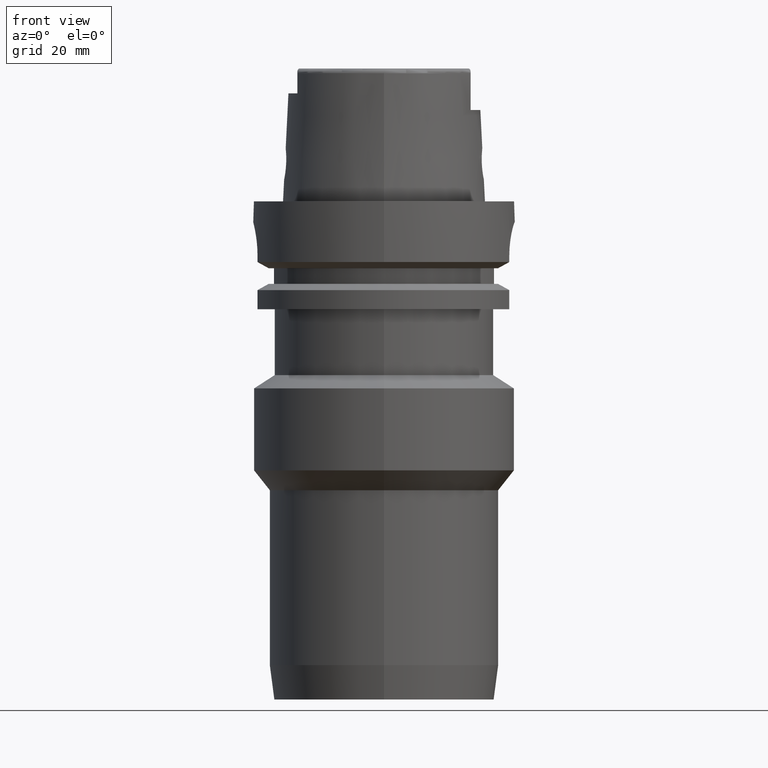
[diagram: clean part render]
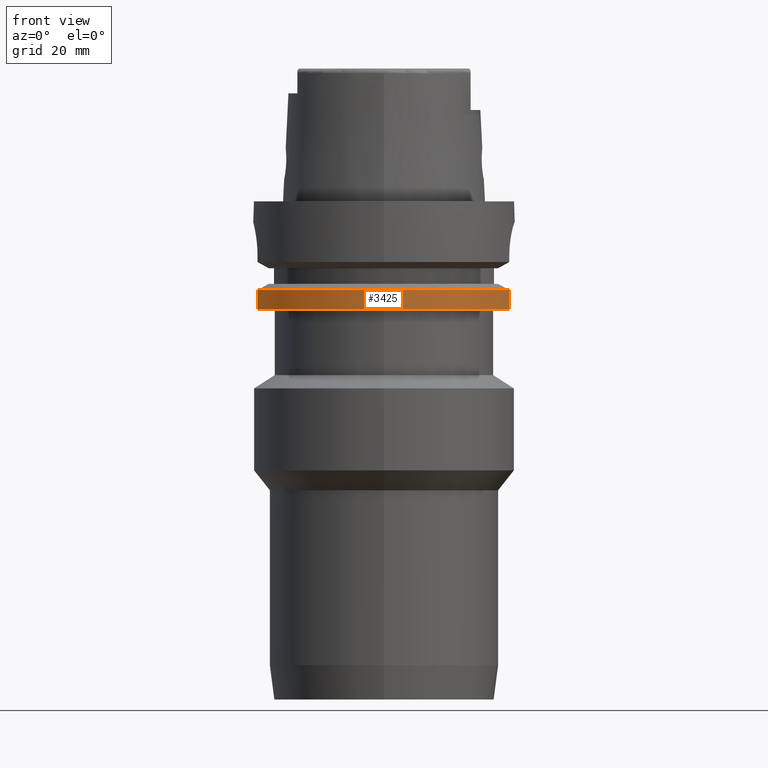
[diagram: same view with one face highlighted and labeled with its STEP entity id]
A machine part, front view. The second image highlights one B-rep face of the part: STEP entity #3425.
In plain terms, the highlighted cylindrical surface (partial cylindrical patch) has radius 31.5 mm, axis along (0, 0, -1).
Its self-contained STEP definition (entity closure, byte-faithful):
#1007=CARTESIAN_POINT('',(0.E0,1.709606931610E-14,-2.6E1));
#1008=DIRECTION('',(0.E0,0.E0,1.E0));
#1009=DIRECTION('',(-9.672125547036E-1,-2.539682539683E-1,0.E0));
#1010=AXIS2_PLACEMENT_3D('',#1007,#1008,#1009);
#1015=CARTESIAN_POINT('',(0.E0,1.709606931610E-14,-2.6E1));
#1016=DIRECTION('',(0.E0,0.E0,1.E0));
#1017=DIRECTION('',(0.E0,-1.E0,0.E0));
#1018=AXIS2_PLACEMENT_3D('',#1015,#1016,#1017);
#1179=DIRECTION('',(-5.649184503021E-9,2.151403712988E-8,1.E0));
#1180=VECTOR('',#1179,4.622501828018E0);
#1181=CARTESIAN_POINT('',(-3.046719547316E1,-8.E0,-2.6E1));
#1182=LINE('',#1181,#1180);
#1186=DIRECTION('',(4.466645379138E-8,1.498161051164E-7,-1.E0));
#1187=VECTOR('',#1186,4.622495339783E0);
#1188=CARTESIAN_POINT('',(3.018691748978E1,-9.000000692524E0,
-2.137750466022E1));
#1189=LINE('',#1188,#1187);
#1287=CARTESIAN_POINT('',(0.E0,0.E0,-2.137749907476E1));
#1288=DIRECTION('',(0.E0,0.E0,-1.E0));
#1289=DIRECTION('',(9.583148474999E-1,-2.857142857143E-1,0.E0));
#1290=AXIS2_PLACEMENT_3D('',#1287,#1288,#1289);
#1295=CARTESIAN_POINT('',(0.E0,0.E0,-2.137749907476E1));
#1296=DIRECTION('',(0.E0,0.E0,-1.E0));
#1297=DIRECTION('',(0.E0,-1.E0,0.E0));
#1298=AXIS2_PLACEMENT_3D('',#1295,#1296,#1297);
#2465=CARTESIAN_POINT('',(-3.046719547316E1,-8.E0,-2.6E1));
#2466=VERTEX_POINT('',#2465);
#2467=CARTESIAN_POINT('',(-1.425430758458E-14,-3.15E1,-2.6E1));
#2468=CARTESIAN_POINT('',(3.018691769625E1,-9.E0,-2.6E1));
#2469=VERTEX_POINT('',#2467);
#2470=VERTEX_POINT('',#2468);
#2622=CARTESIAN_POINT('',(-3.046719549928E1,-7.999999900552E0,
-2.137749817198E1));
#2623=VERTEX_POINT('',#2622);
#2624=CARTESIAN_POINT('',(3.018691769625E1,-9.E0,-2.137749907476E1));
#2625=CARTESIAN_POINT('',(0.E0,-3.15E1,-2.137749907476E1));
#2626=VERTEX_POINT('',#2624);
#2627=VERTEX_POINT('',#2625);
#3409=CARTESIAN_POINT('',(0.E0,1.709606931610E-14,3.96E1));
#3410=DIRECTION('',(0.E0,0.E0,-1.E0));
#3411=DIRECTION('',(0.E0,-1.E0,0.E0));
#3412=AXIS2_PLACEMENT_3D('',#3409,#3410,#3411);
#3413=CYLINDRICAL_SURFACE('',#3412,3.15E1);
#3415=ORIENTED_EDGE('',*,*,#3414,.T.);
#3417=ORIENTED_EDGE('',*,*,#3416,.F.);
#3419=ORIENTED_EDGE('',*,*,#3418,.F.);
#3420=ORIENTED_EDGE('',*,*,#3399,.T.);
#3421=ORIENTED_EDGE('',*,*,#3290,.F.);
#3422=ORIENTED_EDGE('',*,*,#3288,.F.);
#3423=EDGE_LOOP('',(#3415,#3417,#3419,#3420,#3421,#3422));
#3424=FACE_OUTER_BOUND('',#3423,.F.);
#1011=CIRCLE('',#1010,3.15E1);
#1019=CIRCLE('',#1018,3.15E1);
#1291=CIRCLE('',#1290,3.15E1);
#1299=CIRCLE('',#1298,3.15E1);
#3288=EDGE_CURVE('',#2466,#2469,#1011,.T.);
#3290=EDGE_CURVE('',#2469,#2470,#1019,.T.);
#3399=EDGE_CURVE('',#2626,#2470,#1189,.T.);
#3414=EDGE_CURVE('',#2466,#2623,#1182,.T.);
#3416=EDGE_CURVE('',#2627,#2623,#1299,.T.);
#3418=EDGE_CURVE('',#2626,#2627,#1291,.T.);
#3425=ADVANCED_FACE('',(#3424),#3413,.T.);